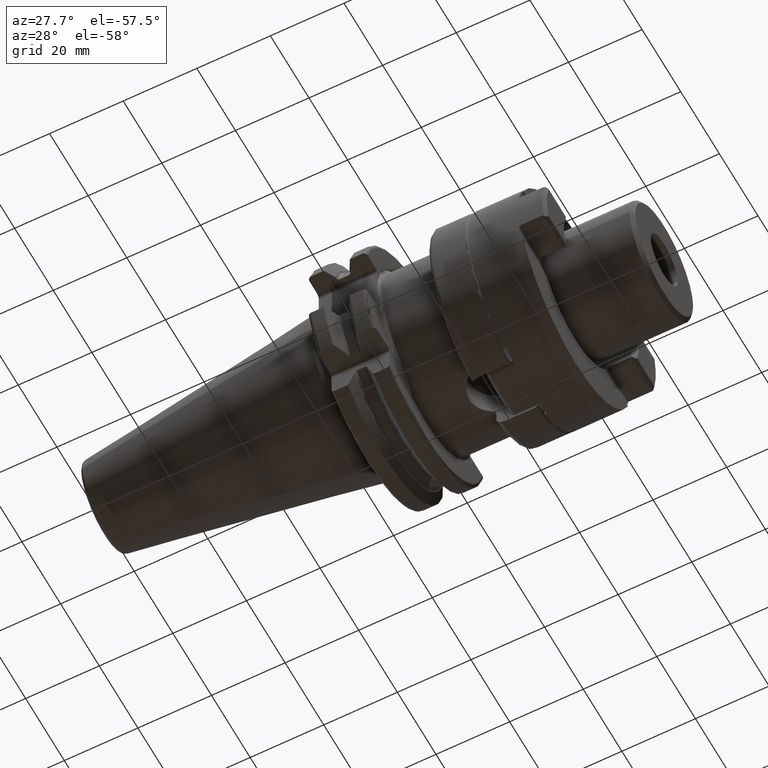
[diagram: clean part render]
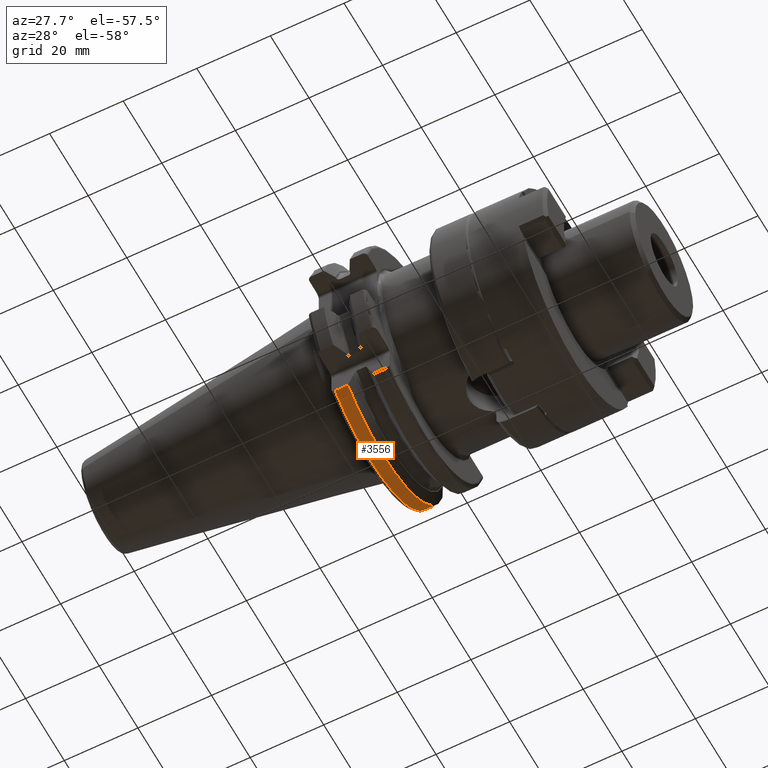
[diagram: same view with one face highlighted and labeled with its STEP entity id]
A machine part, auxiliary view. The second image highlights one B-rep face of the part: STEP entity #3556.
In plain terms, the highlighted cylindrical surface (partial cylindrical patch) has radius 31.7625 mm, axis along (1, 0, 0).
Its self-contained STEP definition (entity closure, byte-faithful):
#1380=DIRECTION('',(1.E0,0.E0,0.E0));
#1381=VECTOR('',#1380,3.445946479578E0);
#1382=CARTESIAN_POINT('',(4.2E0,3.071231684927E1,-8.1E0));
#1383=LINE('',#1382,#1381);
#1384=DIRECTION('',(1.E0,0.E0,0.E0));
#1385=VECTOR('',#1384,3.445946479578E0);
#1386=CARTESIAN_POINT('',(4.2E0,-1.835E1,-2.592554543785E1));
#1387=LINE('',#1386,#1385);
#1388=CARTESIAN_POINT('',(7.645946479578E0,0.E0,0.E0));
#1389=DIRECTION('',(1.E0,0.E0,0.E0));
#1390=DIRECTION('',(0.E0,-5.777253049980E-1,-8.162312613254E-1));
#1391=AXIS2_PLACEMENT_3D('',#1388,#1389,#1390);
#1464=CARTESIAN_POINT('',(4.2E0,0.E0,0.E0));
#1465=DIRECTION('',(-1.E0,0.E0,0.E0));
#1466=DIRECTION('',(0.E0,9.669363825036E-1,-2.550177095632E-1));
#1467=AXIS2_PLACEMENT_3D('',#1464,#1465,#1466);
#1515=CARTESIAN_POINT('',(7.645946479578E0,3.071231684927E1,-8.1E0));
#1522=CARTESIAN_POINT('',(7.645946479578E0,-1.835E1,-2.592554543785E1));
#1934=VERTEX_POINT('',#1515);
#1944=CARTESIAN_POINT('',(4.2E0,3.071231684927E1,-8.1E0));
#1945=VERTEX_POINT('',#1944);
#1975=CARTESIAN_POINT('',(4.2E0,-1.835E1,-2.592554543785E1));
#1976=VERTEX_POINT('',#1975);
#2023=VERTEX_POINT('',#1522);
#3543=CARTESIAN_POINT('',(-7.2615E1,0.E0,0.E0));
#3544=DIRECTION('',(1.E0,0.E0,0.E0));
#3545=DIRECTION('',(0.E0,-1.E0,0.E0));
#3546=AXIS2_PLACEMENT_3D('',#3543,#3544,#3545);
#3547=CYLINDRICAL_SURFACE('',#3546,3.17625E1);
#3548=ORIENTED_EDGE('',*,*,#3187,.F.);
#3550=ORIENTED_EDGE('',*,*,#3549,.T.);
#3551=ORIENTED_EDGE('',*,*,#3533,.T.);
#3553=ORIENTED_EDGE('',*,*,#3552,.T.);
#3554=EDGE_LOOP('',(#3548,#3550,#3551,#3553));
#3555=FACE_OUTER_BOUND('',#3554,.F.);
#3556=ADVANCED_FACE('',(#3555),#3547,.T.);
#1392=CIRCLE('',#1391,3.17625E1);
#1468=CIRCLE('',#1467,3.17625E1);
#3187=EDGE_CURVE('',#1945,#1934,#1383,.T.);
#3533=EDGE_CURVE('',#1976,#2023,#1387,.T.);
#3549=EDGE_CURVE('',#1945,#1976,#1468,.T.);
#3552=EDGE_CURVE('',#2023,#1934,#1392,.T.);